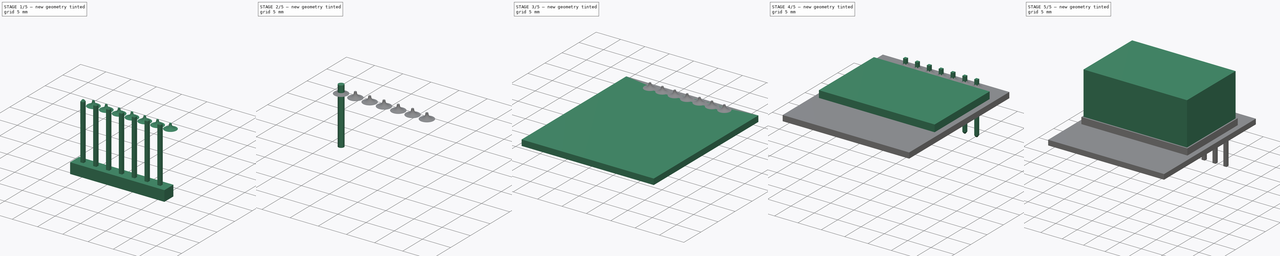
[diagram: build sequence overview — one tinted view per stage of 5, left to right]
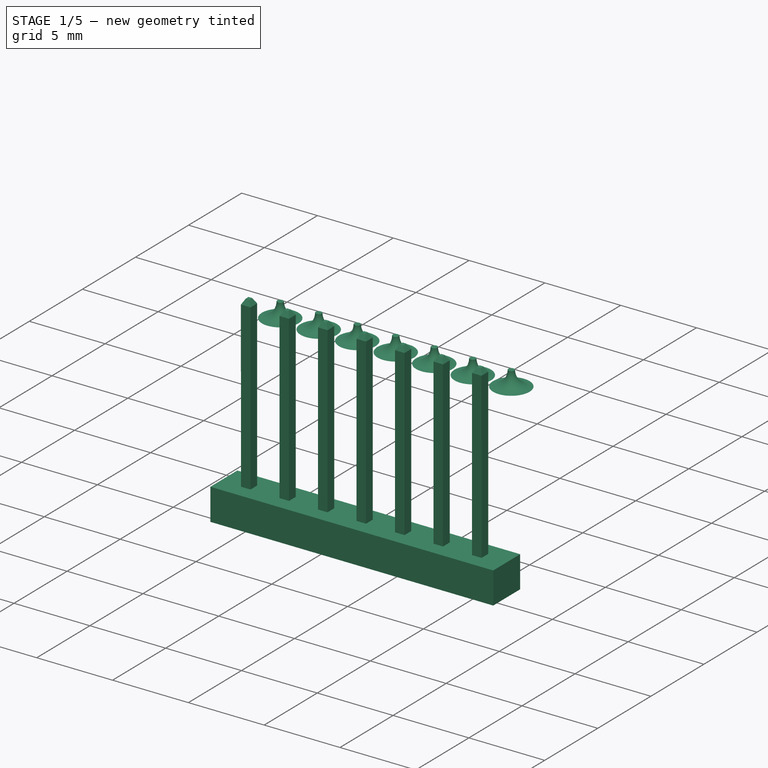
[diagram: stage 1 of 5 — iso view after this stage's code; geometry added in this stage tinted green]
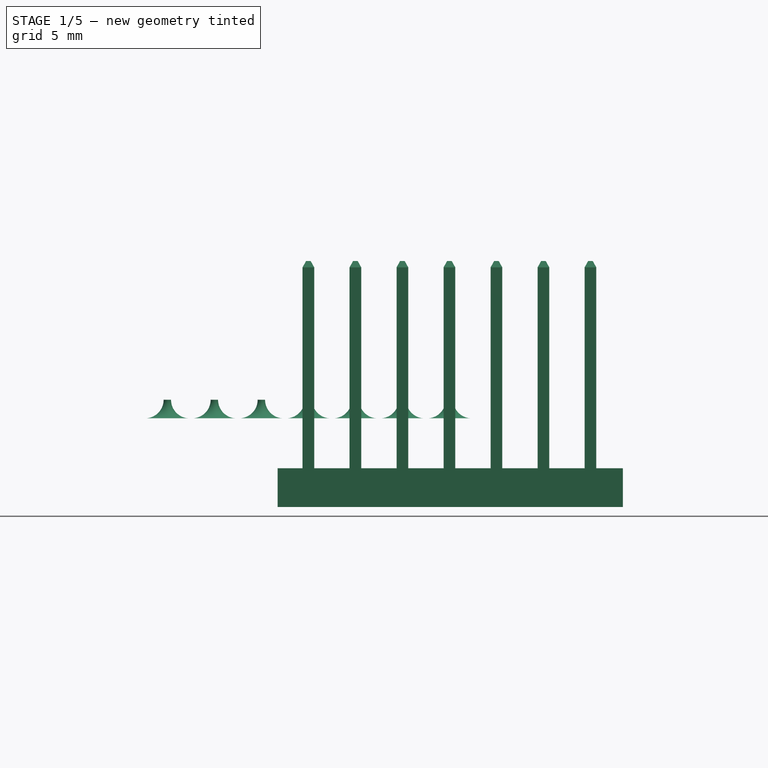
[diagram: stage 1 of 5 — front view after this stage's code; geometry added in this stage tinted green]
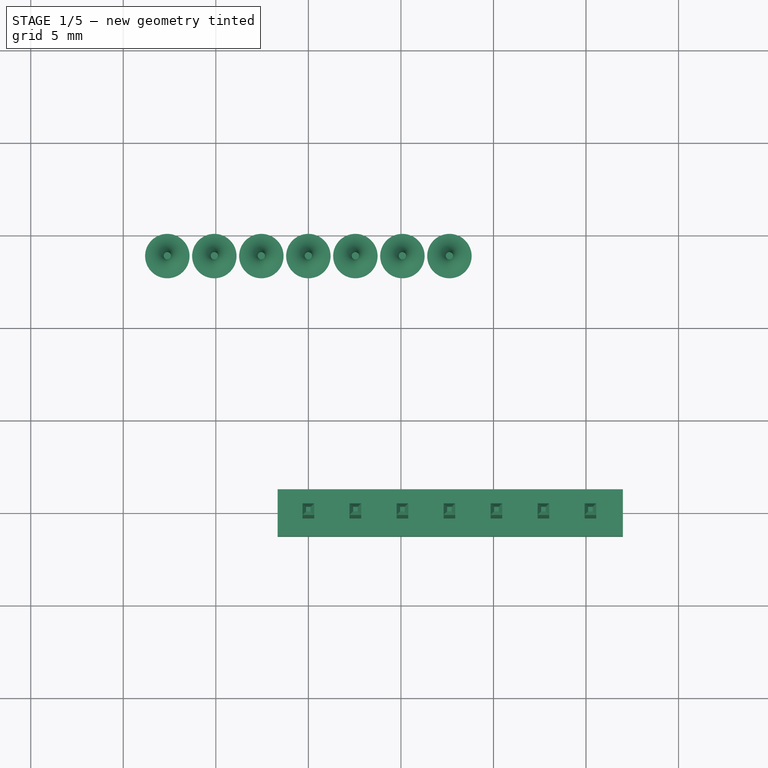
[diagram: stage 1 of 5 — top view after this stage's code; geometry added in this stage tinted green]
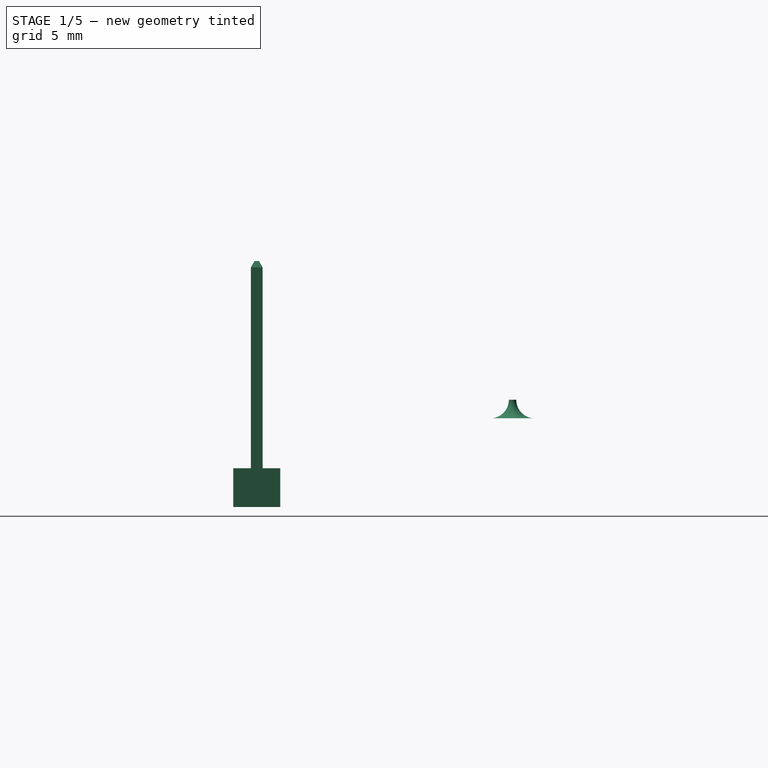
[diagram: stage 1 of 5 — right view after this stage's code; geometry added in this stage tinted green]
FCSTD DOCUMENT  (FreeCAD 0.17R13424 (Git))
Label: ssd1331
License: All rights reserved
LicenseURL: http://en.wikipedia.org/wiki/All_rights_reserved
objects: Part::Feature×15, Sketcher::SketchObject×6, Part::Extrusion×6, Part::Compound×4, Part::FeaturePython×3, Part::Cut×2
note: 36 computed .brp shape members not serialized (recipe doc carries the construction recipe); baked Part::Feature solids carry a one-line shape summary decoded from their .brp

FEATURE [Part::Feature] Part__Feature001  label="COMPOUND001"
  Placement = pos=(0,0,-1) rot=(0,0,1;0rad)
  shape: bbox 0.6505 x 0.63 x 12.7 mm, 14 faces (baked)
FEATURE [Part::Feature] Part__Feature002  label="COMPOUND002"
  Placement = pos=(0,0,-1) rot=(0,0,1;0rad)
  shape: bbox 0.6505 x 0.63 x 12.7 mm, 14 faces (baked)
FEATURE [Part::Feature] Part__Feature003  label="COMPOUND003"
  Placement = pos=(0,0,-1) rot=(0,0,1;0rad)
  shape: bbox 0.6505 x 0.63 x 12.7 mm, 14 faces (baked)
FEATURE [Part::Feature] Part__Feature004  label="COMPOUND004"
  Placement = pos=(0,0,-1) rot=(0,0,1;0rad)
  shape: bbox 0.6505 x 0.63 x 12.7 mm, 14 faces (baked)
FEATURE [Part::Feature] Part__Feature005  label="COMPOUND005"
  Placement = pos=(0,0,-1) rot=(0,0,1;0rad)
  shape: bbox 0.6505 x 0.63 x 12.7 mm, 14 faces (baked)
FEATURE [Part::Feature] Part__Feature006  label="COMPOUND006"
  Placement = pos=(0,0,-1) rot=(0,0,1;0rad)
  shape: bbox 0.6505 x 0.63 x 12.7 mm, 14 faces (baked)
FEATURE [Part::Feature] Part__Feature007  label="COMPOUND007"
  Placement = pos=(0,0,-1) rot=(0,0,1;0rad)
  shape: bbox 0.6505 x 0.63 x 12.7 mm, 14 faces (baked)
FEATURE [Part::Feature] Part__Feature008  label="COMPOUND008"
  shape: bbox 3.704 x 2.554 x 2.812 mm, 22 faces, 0 solids (baked)
FEATURE [Part::Feature] Part__Feature009  label="COMPOUND009"
  shape: bbox 3.704 x 2.554 x 2.812 mm, 22 faces, 0 solids (baked)
FEATURE [Part::Feature] Part__Feature010  label="COMPOUND010"
  shape: bbox 3.704 x 2.554 x 2.812 mm, 22 faces, 0 solids (baked)
FEATURE [Part::Feature] Part__Feature011  label="COMPOUND011"
  shape: bbox 3.704 x 2.554 x 2.812 mm, 23 faces, 0 solids (baked)
FEATURE [Part::Feature] Part__Feature012  label="COMPOUND012"
  shape: bbox 3.704 x 2.554 x 2.812 mm, 22 faces, 0 solids (baked)
FEATURE [Part::Feature] Part__Feature013  label="COMPOUND013"
  shape: bbox 3.704 x 2.554 x 2.812 mm, 22 faces, 0 solids (baked)
FEATURE [Part::Feature] Part__Feature014  label="COMPOUND014"
  shape: bbox 3.704 x 2.554 x 2.812 mm, 23 faces, 0 solids (baked)
FEATURE [Sketcher::SketchObject] Sketch006
  MapMode = 5
  Placement = pos=(0,1.27,0) rot=(0,0.707107,0.707107;3.14159rad)
  Support = -> [Part__Feature014]
  sketch-geometry (4):
    g0: LineSegment StartX=-16.992 StartY=-2.7 StartZ=0 EndX=1.66416 EndY=-2.7 EndZ=0
    g1: LineSegment StartX=1.66416 StartY=-2.7 StartZ=0 EndX=1.66416 EndY=-4.79161 EndZ=0
    g2: LineSegment StartX=1.66416 StartY=-4.79161 StartZ=0 EndX=-16.992 EndY=-4.79161 EndZ=0
    g3: LineSegment StartX=-16.992 StartY=-4.79161 StartZ=0 EndX=-16.992 EndY=-2.7 EndZ=0
  constraints (9):
    c: Coincident(g0,g1)
    c: Coincident(g1,g2)
    c: Coincident(g2,g3)
    c: Coincident(g3,g0)
    c: Horizontal(g0)
    c: Horizontal(g2)
    c: Vertical(g1)
    c: Vertical(g3)
    c: DistanceY(g0,g-1) = 2.7
FEATURE [Part::Extrusion] Extrude006
  Base = -> Sketch006
  Dir = (0,-2.54,0)
  DirMode = 0
  FaceMakerClass = Part::FaceMakerExtrusion
  LengthFwd = 0
  LengthRev = 0
  Solid = true
  Symmetric = false
FEATURE [Part::Compound] Compound002
  Links = -> [Part__Feature001,Part__Feature002,Part__Feature003,Part__Feature004,Part__Feature005,Part__Feature006,Part__Feature007]
FEATURE [Part::Feature] Revolution001
  Placement = pos=(-7.6204,13.82,0) rot=(0.57735,0.57735,0.57735;2.0944rad)
  shape: bbox 4.135 x 4.135 x 1.71 mm, 3 faces (baked)
FEATURE [Part::FeaturePython] Array002  label="Solders"  # Draft array (typed FeaturePython)
  Angle = 360
  ArrayType = 0
  Axis = (0,0,1)
  Base = -> Revolution001
  Center = (0,0,0)
  Fuse = false
  IntervalAxis = (0,0,0)
  IntervalX = (2.54,0,0)
  IntervalY = (0,1,0)
  IntervalZ = (0,0,0)
  NumberPolar = 1
  NumberX = 7
  NumberY = 1
  NumberZ = 1
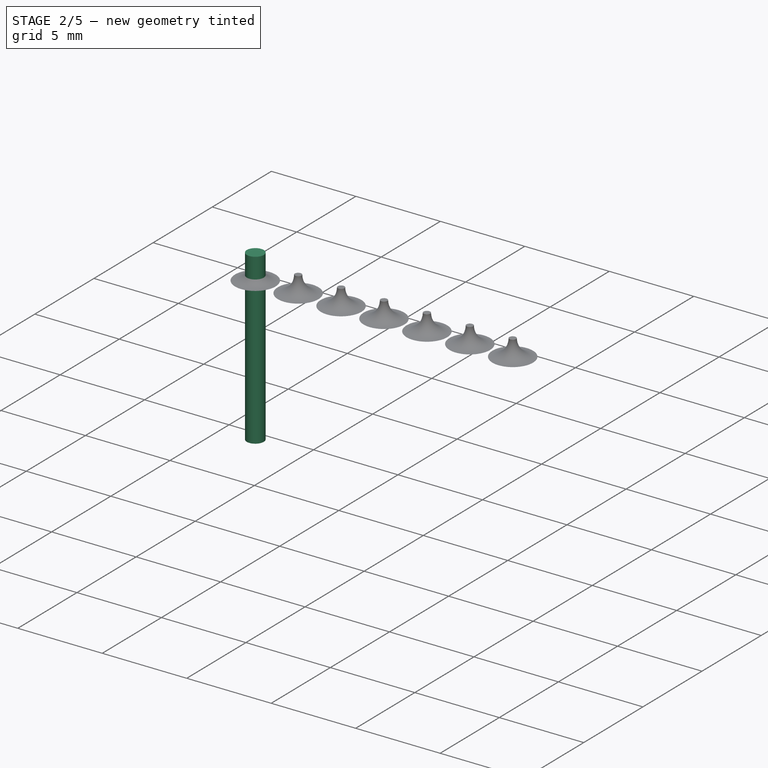
[diagram: stage 2 of 5 — iso view after this stage's code; geometry added in this stage tinted green]
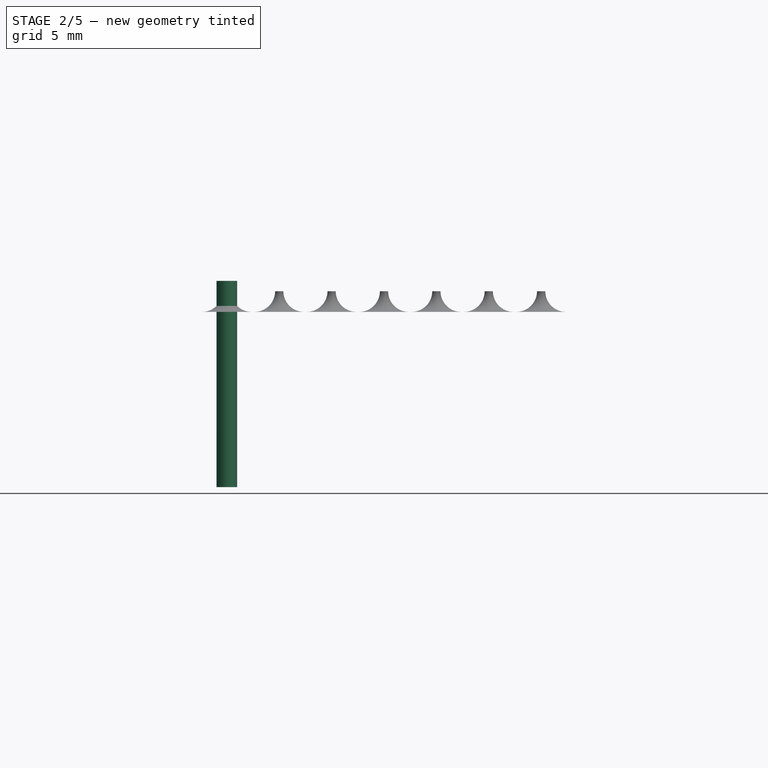
[diagram: stage 2 of 5 — front view after this stage's code; geometry added in this stage tinted green]
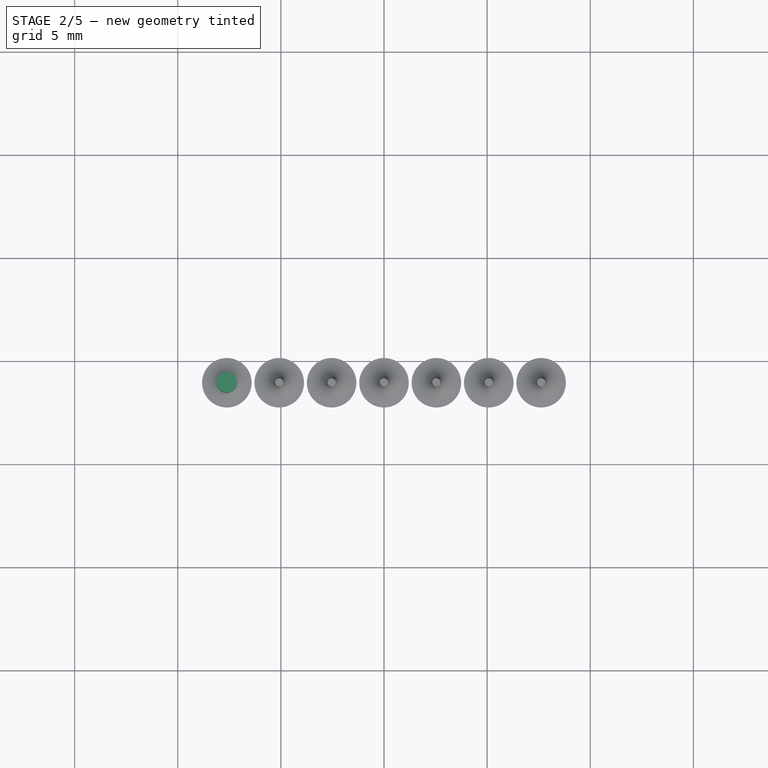
[diagram: stage 2 of 5 — top view after this stage's code; geometry added in this stage tinted green]
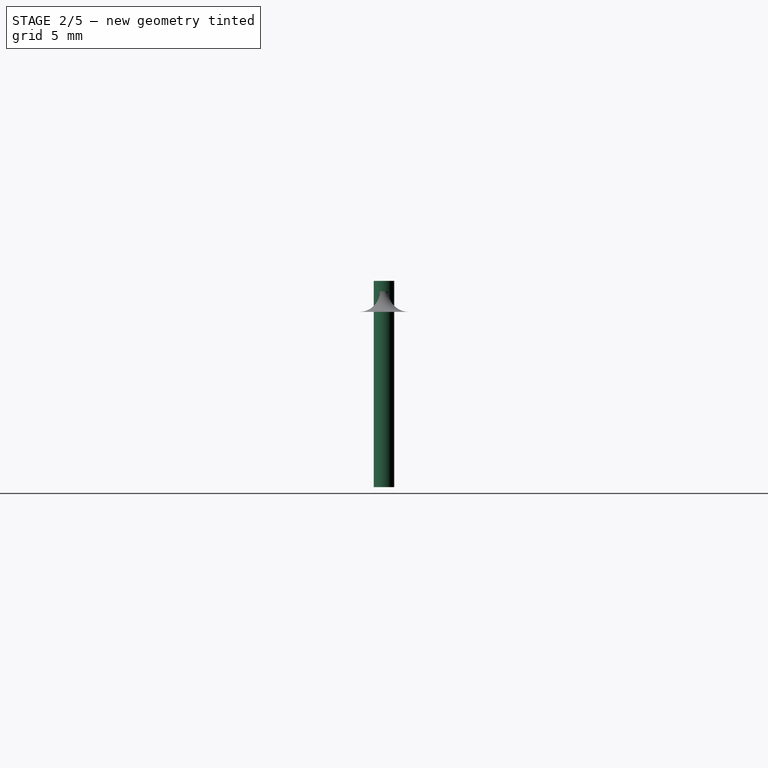
[diagram: stage 2 of 5 — right view after this stage's code; geometry added in this stage tinted green]
FEATURE [Part::Cut] Cut
  Base = -> Compound002
  Tool = -> Extrude006
FEATURE [Part::Compound] Compound003  label="Pins"
  Links = -> [Part__Feature008,Part__Feature009,Part__Feature010,Part__Feature011,Part__Feature012,Part__Feature013,Part__Feature014,Cut]
  Placement = pos=(-7.6204,13.82,-1.2) rot=(1,0,0;3.14159rad)
FEATURE [Sketcher::SketchObject] Sketch007
  MapMode = 5
  Placement = pos=(-7.6204,13.82,1.5) rot=(0,0,1;0rad)
  Support = -> [Compound003]
  sketch-geometry (1):
    g0: Circle CenterX=0 CenterY=0 CenterZ=0 NormalX=0 NormalY=0 NormalZ=1 AngleXU=0 Radius=0.5
  constraints (2):
    c: Coincident(g0,g-1)
    c: Radius(g0) = 0.5
FEATURE [Part::Extrusion] Extrude007
  Base = -> Sketch007
  Dir = (0,0,-10)
  DirMode = 0
  FaceMakerClass = Part::FaceMakerExtrusion
  LengthFwd = 0
  LengthRev = 0
  Solid = true
  Symmetric = false
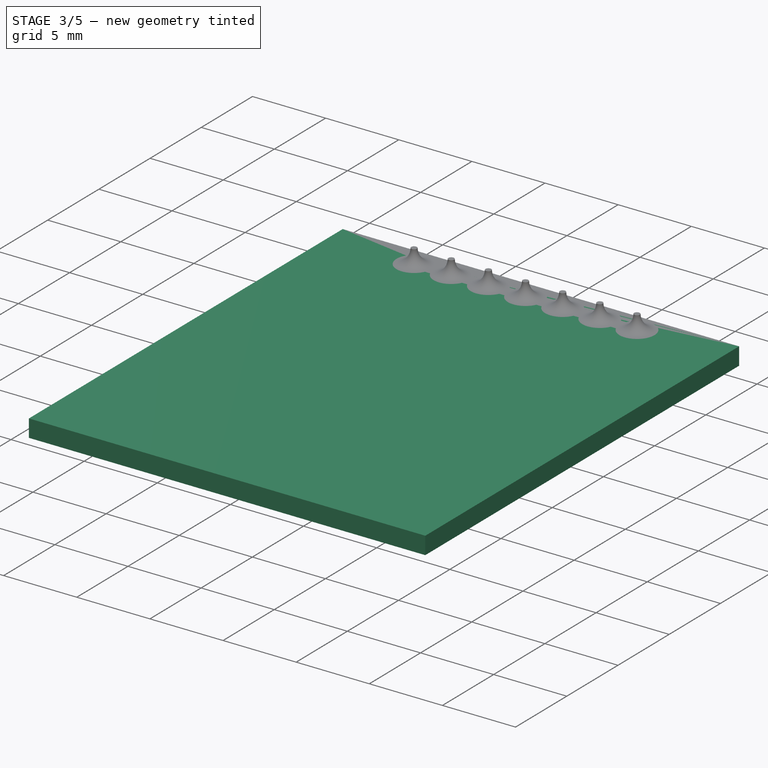
[diagram: stage 3 of 5 — iso view after this stage's code; geometry added in this stage tinted green]
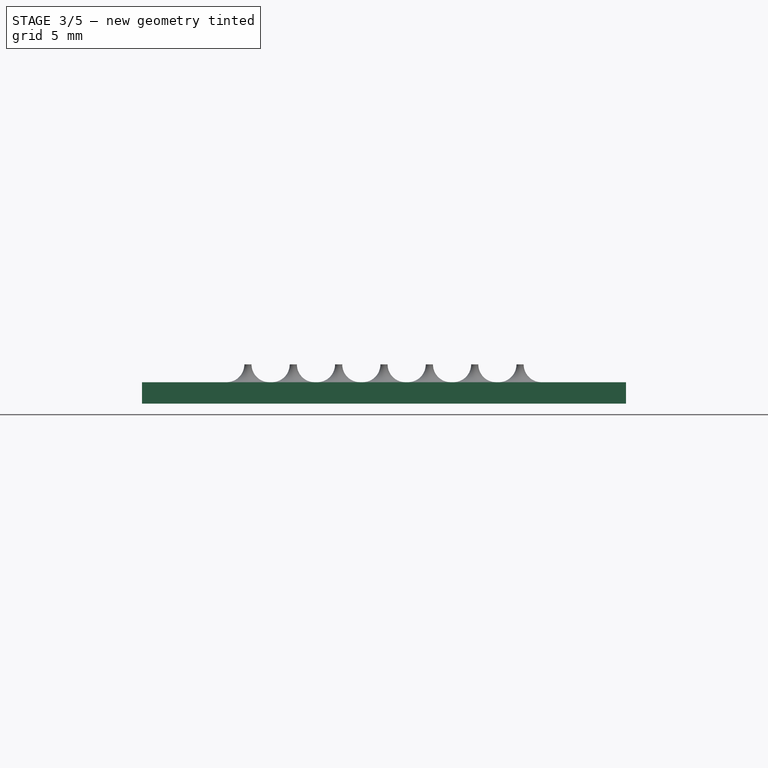
[diagram: stage 3 of 5 — front view after this stage's code; geometry added in this stage tinted green]
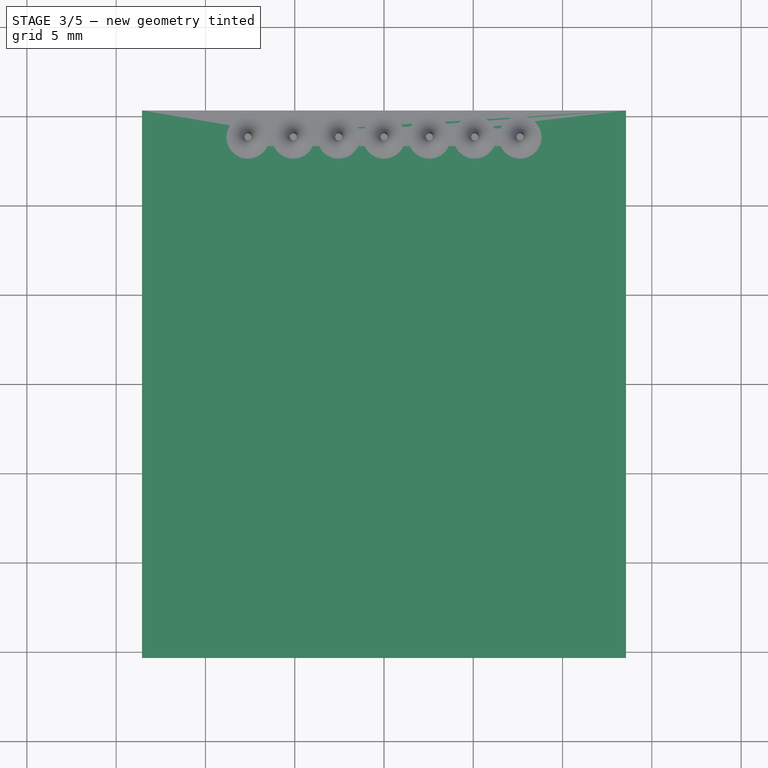
[diagram: stage 3 of 5 — top view after this stage's code; geometry added in this stage tinted green]
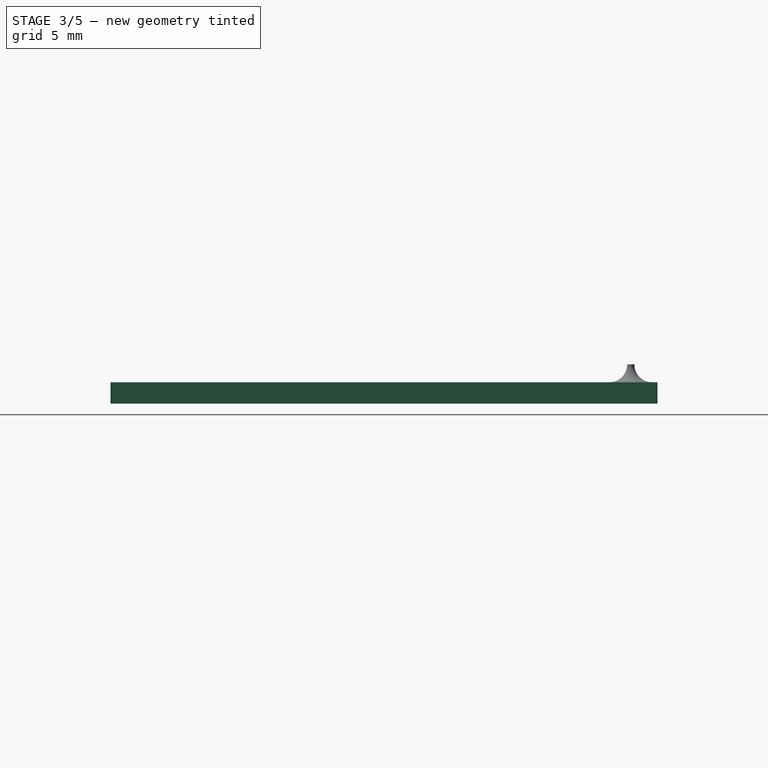
[diagram: stage 3 of 5 — right view after this stage's code; geometry added in this stage tinted green]
FEATURE [Sketcher::SketchObject] Sketch
  MapMode = 5
  sketch-geometry (4):
    g0: LineSegment StartX=-13.55 StartY=15.32 StartZ=0 EndX=13.55 EndY=15.32 EndZ=0
    g1: LineSegment StartX=13.55 StartY=15.32 StartZ=0 EndX=13.55 EndY=-15.32 EndZ=0
    g2: LineSegment StartX=13.55 StartY=-15.32 StartZ=0 EndX=-13.55 EndY=-15.32 EndZ=0
    g3: LineSegment StartX=-13.55 StartY=-15.32 StartZ=0 EndX=-13.55 EndY=15.32 EndZ=0
  constraints (10):
    c: Coincident(g0,g1)
    c: Coincident(g1,g2)
    c: Coincident(g2,g3)
    c: Coincident(g3,g0)
    c: Horizontal(g0)
    c: Horizontal(g2)
    c: Vertical(g1)
    c: Vertical(g3)
    c: DistanceX(g0,g0) = 27.1  'PcbWidth'
    c: DistanceY(g1,g1) = 30.64  'PcbHeight'
FEATURE [Part::Extrusion] Extrude
  Base = -> Sketch
  Dir = (0,0,-1.2)
  DirMode = 0
  FaceMakerClass = Part::FaceMakerExtrusion
  LengthFwd = 0
  LengthRev = 0
  Solid = true
  Symmetric = false
FEATURE [Part::FeaturePython] Array001  # Draft array (typed FeaturePython)
  Angle = 360
  ArrayType = 0
  Axis = (0,0,1)
  Base = -> Extrude007
  Center = (0,0,0)
  Fuse = false
  IntervalAxis = (0,0,0)
  IntervalX = (2.54,0,0)
  IntervalY = (0,1,0)
  IntervalZ = (0,0,0)
  NumberPolar = 1
  NumberX = 7
  NumberY = 1
  NumberZ = 1
FEATURE [Part::Cut] Cut001  label="Pcb"
  Base = -> Extrude
  Tool = -> Array001
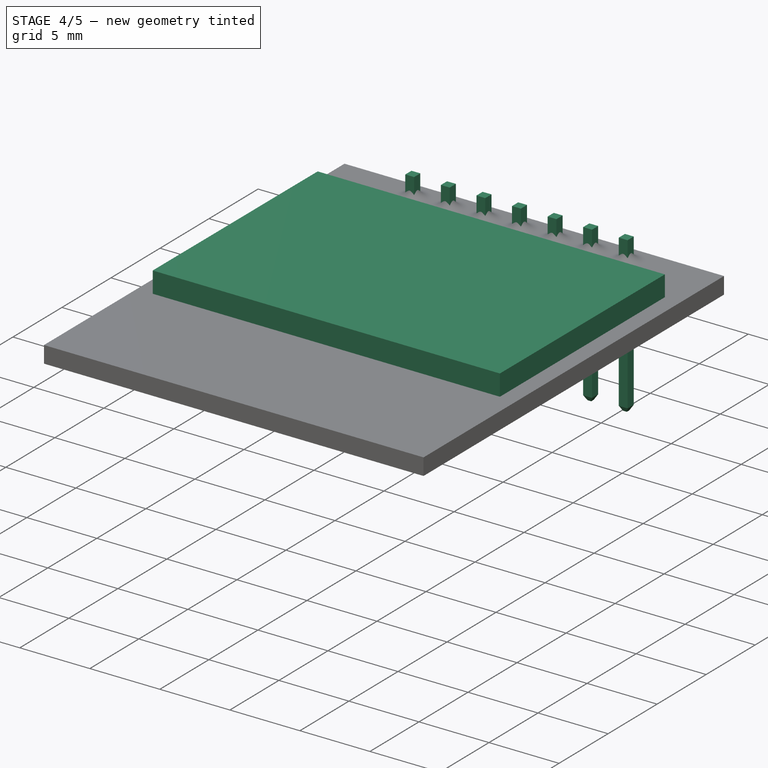
[diagram: stage 4 of 5 — iso view after this stage's code; geometry added in this stage tinted green]
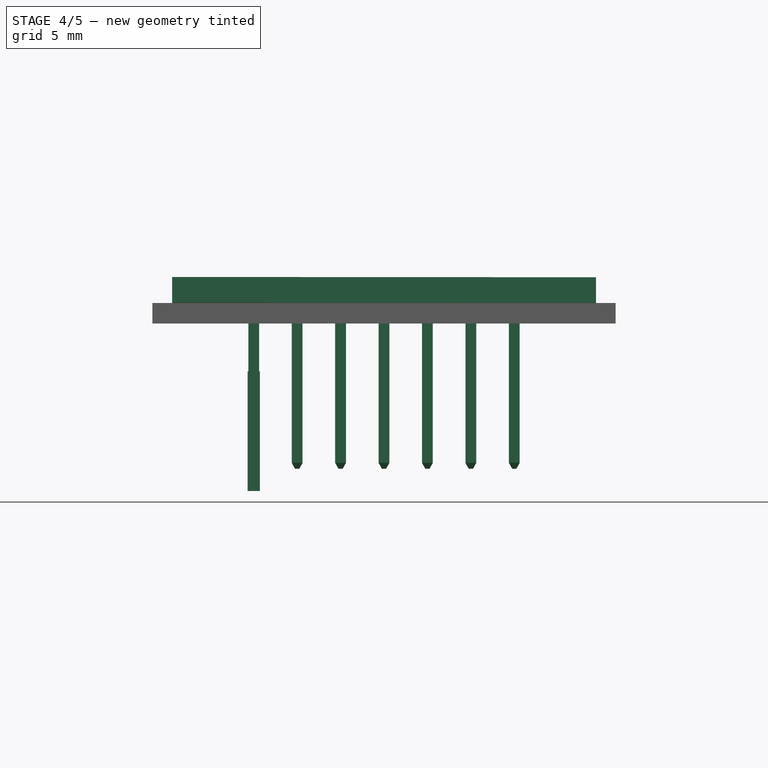
[diagram: stage 4 of 5 — front view after this stage's code; geometry added in this stage tinted green]
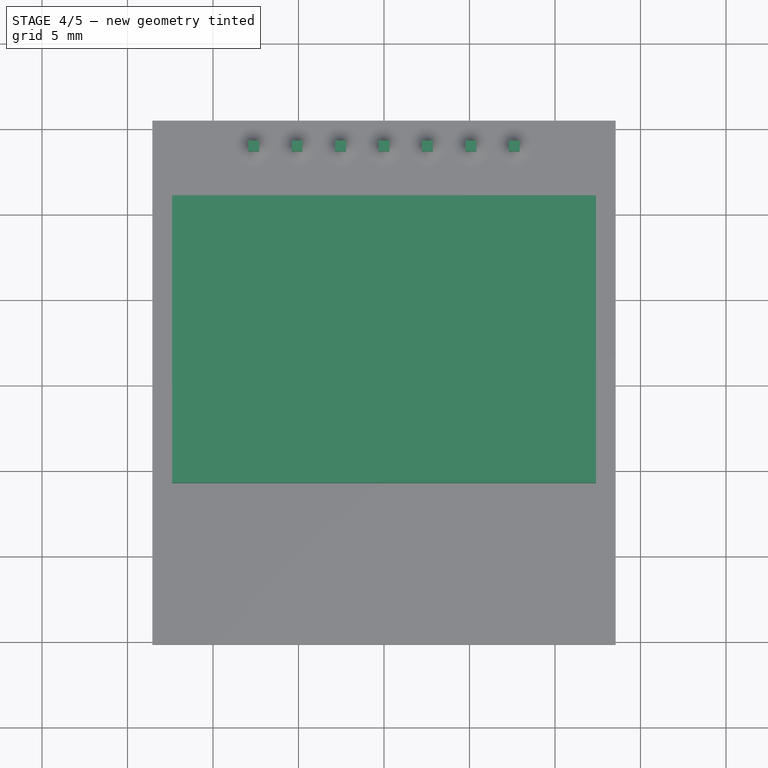
[diagram: stage 4 of 5 — top view after this stage's code; geometry added in this stage tinted green]
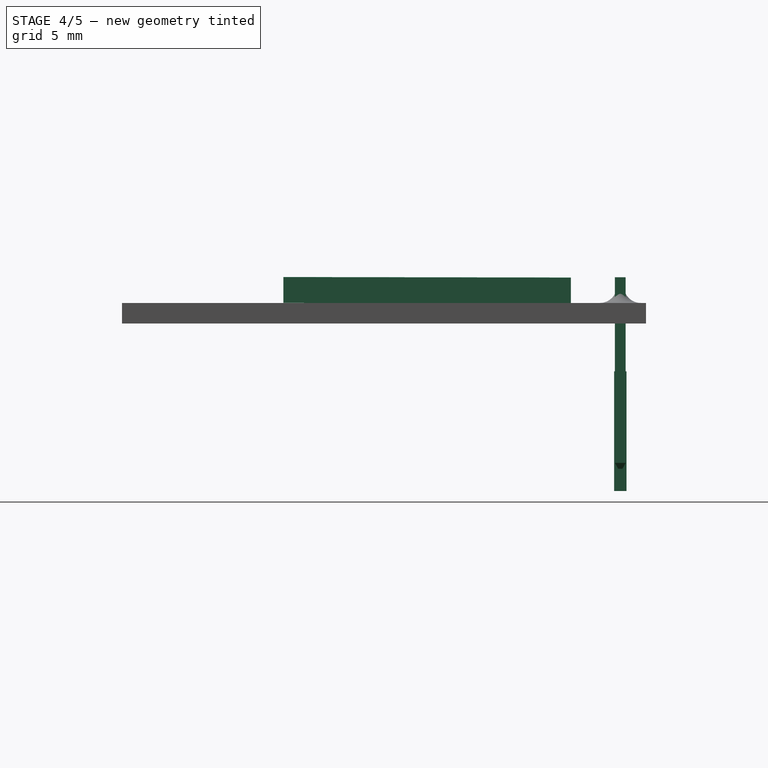
[diagram: stage 4 of 5 — right view after this stage's code; geometry added in this stage tinted green]
FEATURE [Sketcher::SketchObject] Sketch004
  MapMode = 5
  Placement = pos=(-7.62,13.82,-4) rot=(1,0,0;3.14159rad)
  sketch-geometry (4):
    g0: LineSegment StartX=-0.359212 StartY=0.359212 StartZ=0 EndX=0.359212 EndY=0.359212 EndZ=0
    g1: LineSegment StartX=0.359212 StartY=0.359212 StartZ=0 EndX=0.359212 EndY=-0.359212 EndZ=0
    g2: LineSegment StartX=0.359212 StartY=-0.359212 StartZ=0 EndX=-0.359212 EndY=-0.359212 EndZ=0
    g3: LineSegment StartX=-0.359212 StartY=-0.359212 StartZ=0 EndX=-0.359212 EndY=0.359212 EndZ=0
  constraints (11):
    c: Coincident(g0,g1)
    c: Coincident(g1,g2)
    c: Coincident(g2,g3)
    c: Coincident(g3,g0)
    c: Horizontal(g0)
    c: Horizontal(g2)
    c: Vertical(g1)
    c: Vertical(g3)
    c: Symmetric(g1,g0,g-1)
    c: Symmetric(g0,g0,g-2)
    c: Equal(g1,g0)
FEATURE [Part::Extrusion] Extrude004
  Base = -> Sketch004
  Dir = (0,0,-7)
  DirMode = 0
  FaceMakerClass = Part::FaceMakerExtrusion
  LengthFwd = 0
  LengthRev = 0
  Solid = true
  Symmetric = false
FEATURE [Sketcher::SketchObject] Sketch005
  MapMode = 5
  Placement = pos=(0.000975597,0.00258297,1.5) rot=(-0.935495,0.35334,-0.000304;0.001841rad)
  sketch-geometry (4):
    g0: LineSegment StartX=-12.3911 StartY=10.9301 StartZ=0 EndX=12.3952 EndY=10.9301 EndZ=0
    g1: LineSegment StartX=12.3952 StartY=10.9301 StartZ=0 EndX=12.3952 EndY=-5.8901 EndZ=0
    g2: LineSegment StartX=12.3952 StartY=-5.8901 StartZ=0 EndX=-12.3911 EndY=-5.8901 EndZ=0
    g3: LineSegment StartX=-12.3911 StartY=-5.8901 StartZ=0 EndX=-12.3911 EndY=10.9301 EndZ=0
  constraints (8):
    c: Coincident(g0,g1)
    c: Coincident(g1,g2)
    c: Coincident(g2,g3)
    c: Coincident(g3,g0)
    c: Horizontal(g0)
    c: Horizontal(g2)
    c: Vertical(g1)
    c: Vertical(g3)
FEATURE [Part::Extrusion] Extrude005  label="Display"
  Base = -> Sketch005
  Dir = (0,0,-1.5)
  DirMode = 0
  FaceMakerClass = Part::FaceMakerExtrusion
  LengthFwd = 0
  LengthRev = 0
  Solid = true
  Symmetric = false
FEATURE [Part::Compound] Compound004  label="_ssd1331"
  Links = -> [Array002,Cut001,Compound003,Extrude005]
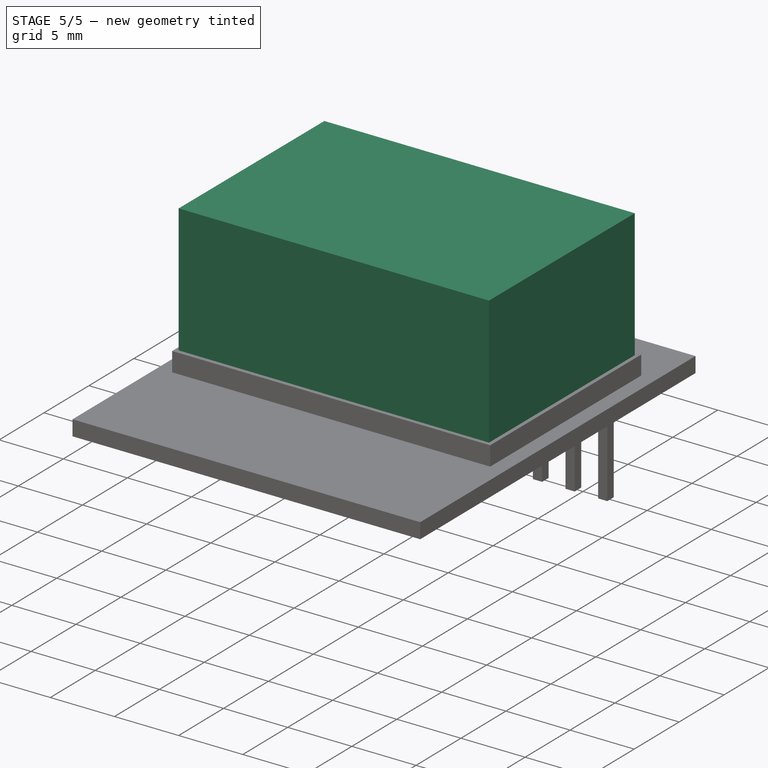
[diagram: stage 5 of 5 — iso view after this stage's code; geometry added in this stage tinted green]
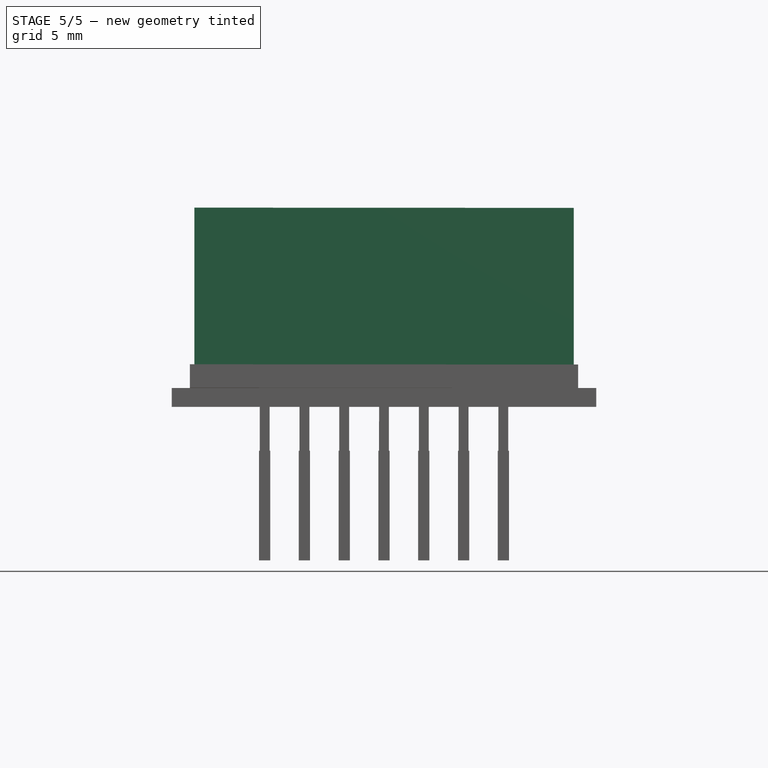
[diagram: stage 5 of 5 — front view after this stage's code; geometry added in this stage tinted green]
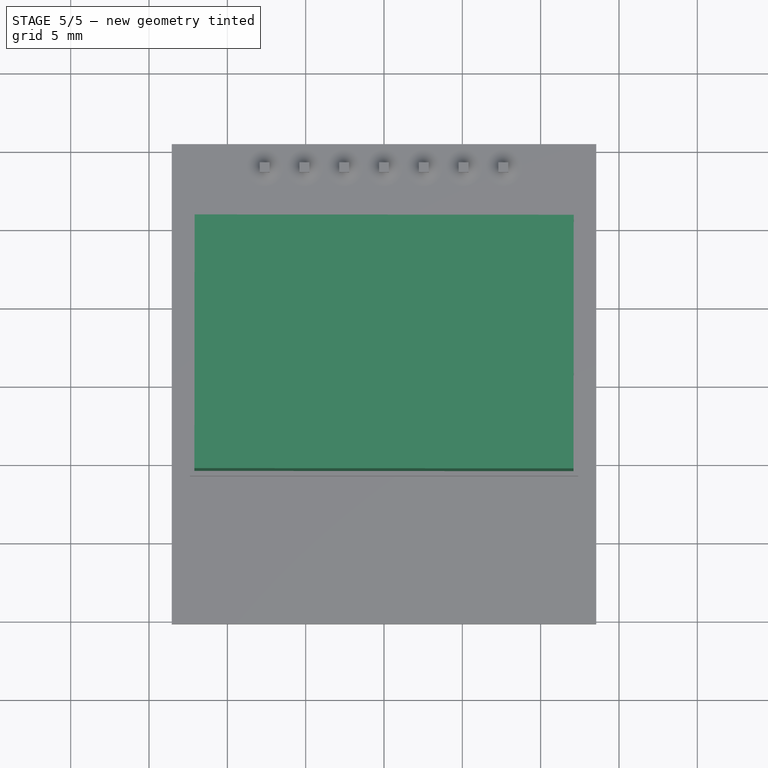
[diagram: stage 5 of 5 — top view after this stage's code; geometry added in this stage tinted green]
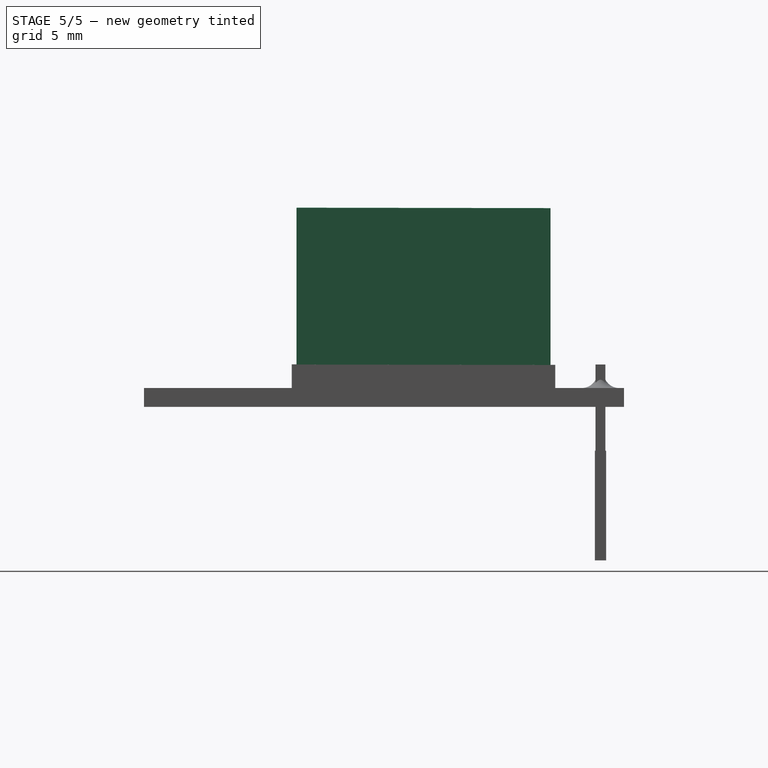
[diagram: stage 5 of 5 — right view after this stage's code; geometry added in this stage tinted green]
FEATURE [Sketcher::SketchObject] Sketch003
  MapMode = 5
  Placement = pos=(0.000975597,0.00258297,1.5) rot=(-0.855461,0.322712,-0.405022;0.002013rad)
  sketch-geometry (4):
    g0: LineSegment StartX=-12.1 StartY=10.62 StartZ=0 EndX=12.1 EndY=10.62 EndZ=0
    g1: LineSegment StartX=12.1 StartY=10.62 StartZ=0 EndX=12.1 EndY=-5.58 EndZ=0
    g2: LineSegment StartX=12.1 StartY=-5.58 StartZ=0 EndX=-12.1 EndY=-5.58 EndZ=0
    g3: LineSegment StartX=-12.1 StartY=-5.58 StartZ=0 EndX=-12.1 EndY=10.62 EndZ=0
  constraints (9):
    c: Coincident(g0,g1)
    c: Coincident(g1,g2)
    c: Coincident(g2,g3)
    c: Coincident(g3,g0)
    c: Horizontal(g0)
    c: Horizontal(g2)
    c: Vertical(g1)
    c: Vertical(g3)
    c: Symmetric(g0,g0,g-2)
FEATURE [Part::Extrusion] Extrude003  label="Ssd1331FPHole"
  Base = -> Sketch003
  Dir = (0,0,10)
  DirMode = 0
  FaceMakerClass = Part::FaceMakerExtrusion
  LengthFwd = 0
  LengthRev = 0
  Solid = true
  Symmetric = false
FEATURE [Part::FeaturePython] Array  label="ssd1331PcbHoles"  # Draft array (typed FeaturePython)
  Angle = 360
  ArrayType = 0
  Axis = (0,0,1)
  Base = -> Extrude004
  Center = (0,0,0)
  Fuse = false
  IntervalAxis = (0,0,0)
  IntervalX = (2.54,0,0)
  IntervalY = (0,1,0)
  IntervalZ = (0,0,0)
  NumberPolar = 1
  NumberX = 7
  NumberY = 1
  NumberZ = 1
FEATURE [Part::Compound] Compound  label="_ssd1331Holes"
  Links = -> [Extrude003,Array]
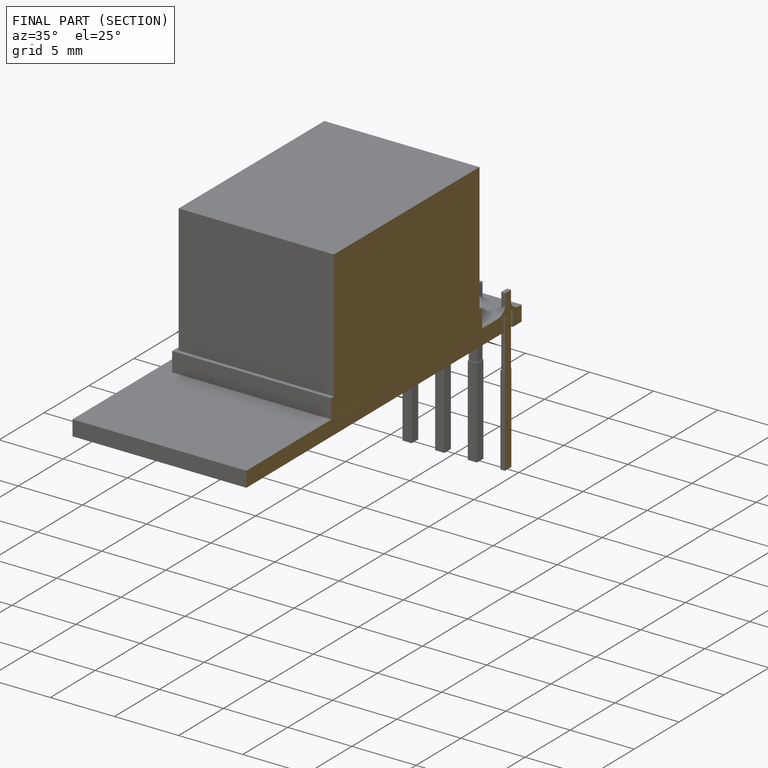
[diagram: finished part — half-section view (interior)]
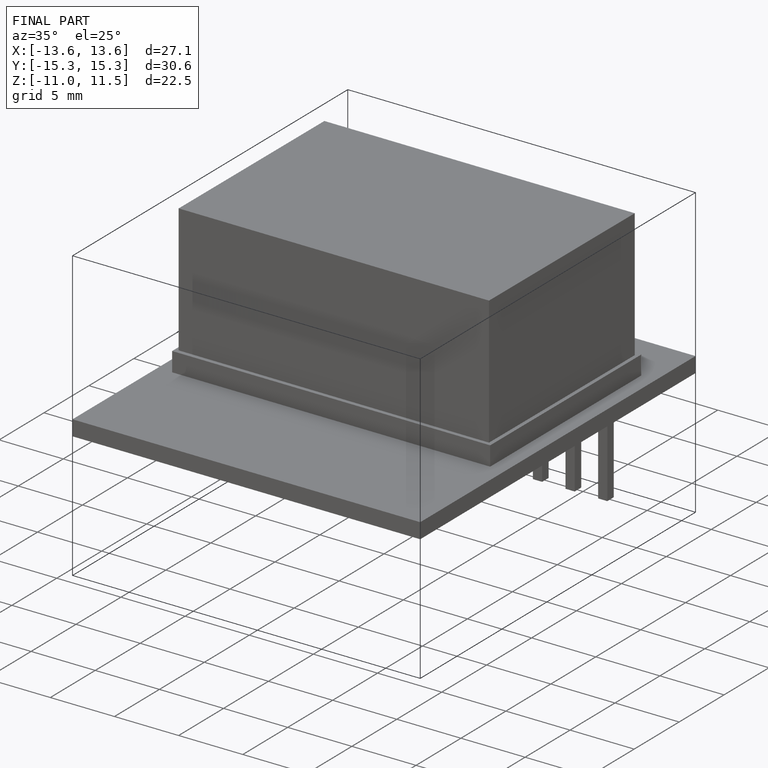
[diagram: finished part — iso view with bounding-box wireframe]
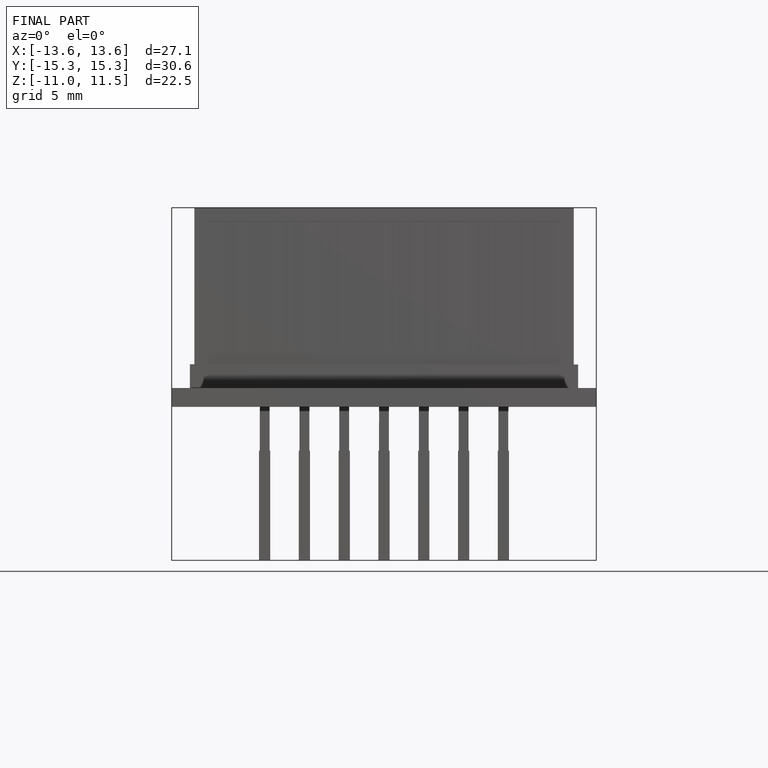
[diagram: finished part — front view with bounding-box wireframe]
